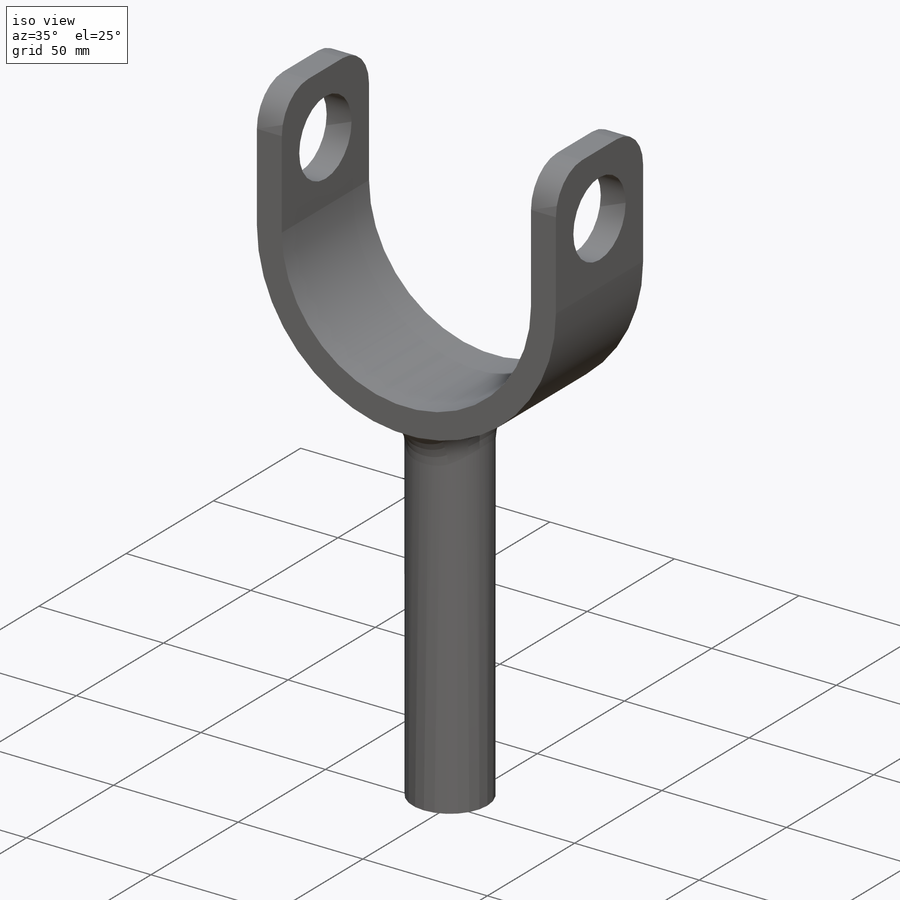
[diagram: iso view]
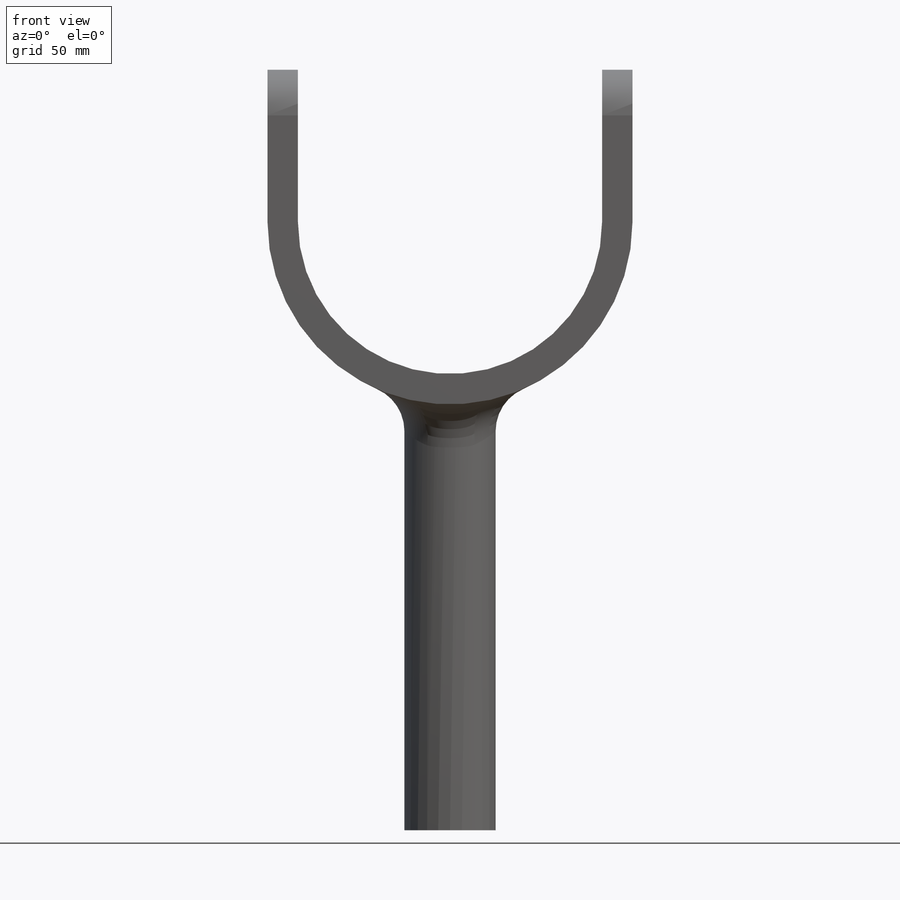
[diagram: front view]
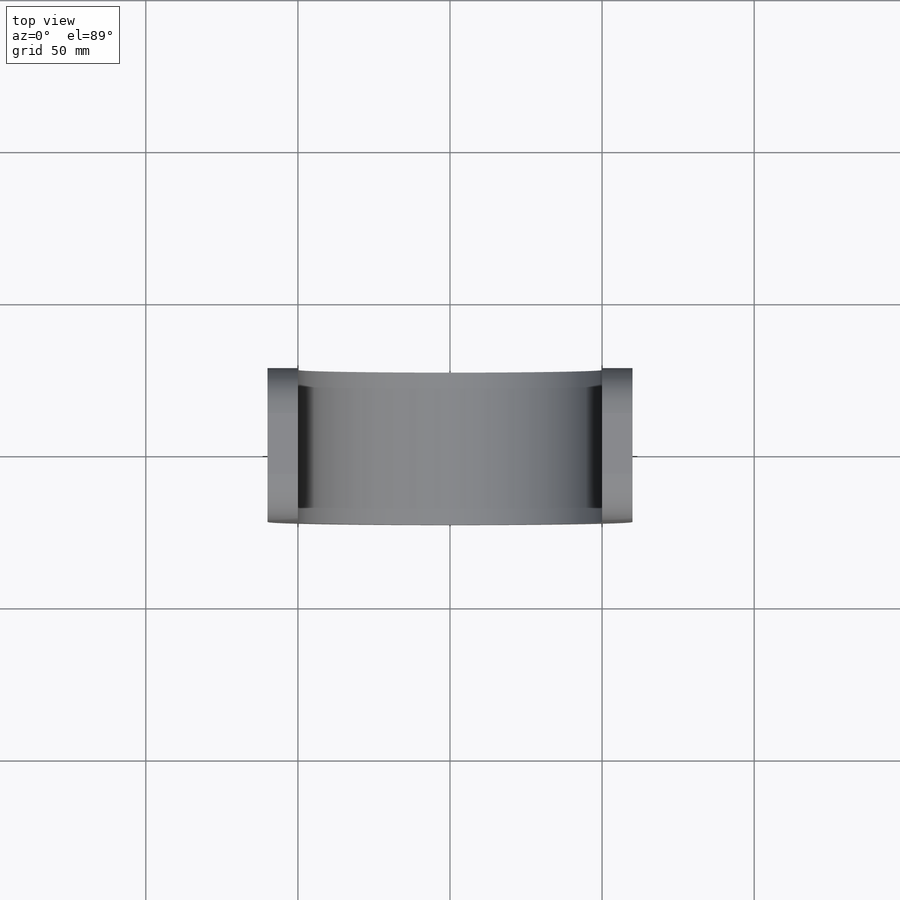
[diagram: top view]
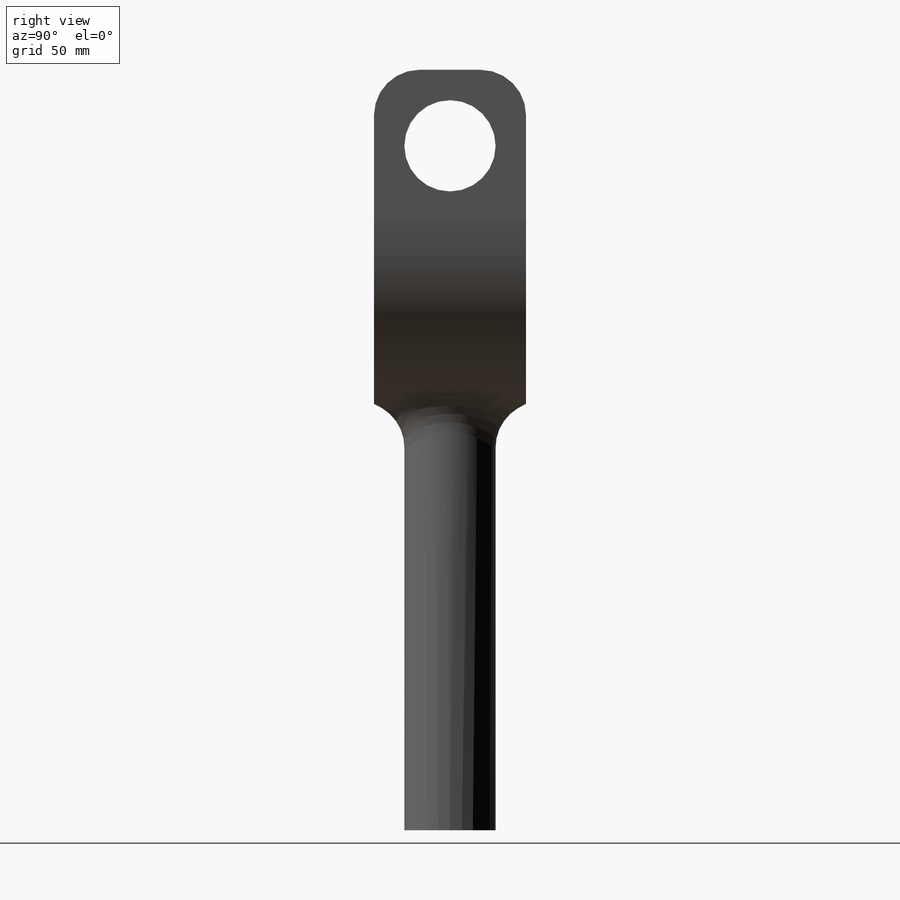
[diagram: right view]
SOLIDWORKS PART (.sldprt)
format: sldprt  version: not decoded by parser v0  size: 217,088 bytes
history: native  units: mm
features: sketch x4, plane x3, extrude x2, fillet x2, material x1, cut_extrude x1 (+8 scaffold rows collapsed)
feature tree (21):
  scaffold x8  (default folders/planes/origin — collapsed)
  material  "1060 Alaşım"
  plane  "Ön Düzlem"
  plane  "Üst Düzlem"
  plane  "Sağ Düzlem"
  sketch  "Çizim1"  dims[c1.D1=100.0mm c1.D2=100.0mm c2.D1=200.0mm c2.D2=50.0mm]
  extrude  "Yükseklik-Ekstrüzyon1"  Depth=50mm
  sketch  "Çizim2"  dims[D1=~605.020557mm]
  sketch  "Çizim3"  dims[D1=30.0mm]
  extrude  "Yükseklik-Ekstrüzyon2"  [1 undecoded]
  fillet  "Radyus1"  Radius=15mm
  sketch  "Çizim4"  dims[D1=30.0mm]
  cut_extrude  "Kes-Ekstrüzyon1"  Depth=190mm
  fillet  "Radyus2"  Radius=15mm
decode coverage: 8 of 9 modeling features carry decoded parameters
note: ~ marks probable driven/reference dimensions
note: 1 parameter value undecoded
note: suppression state not decoded; provenance and decode notes live in map.json
